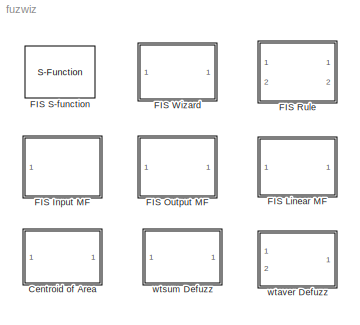
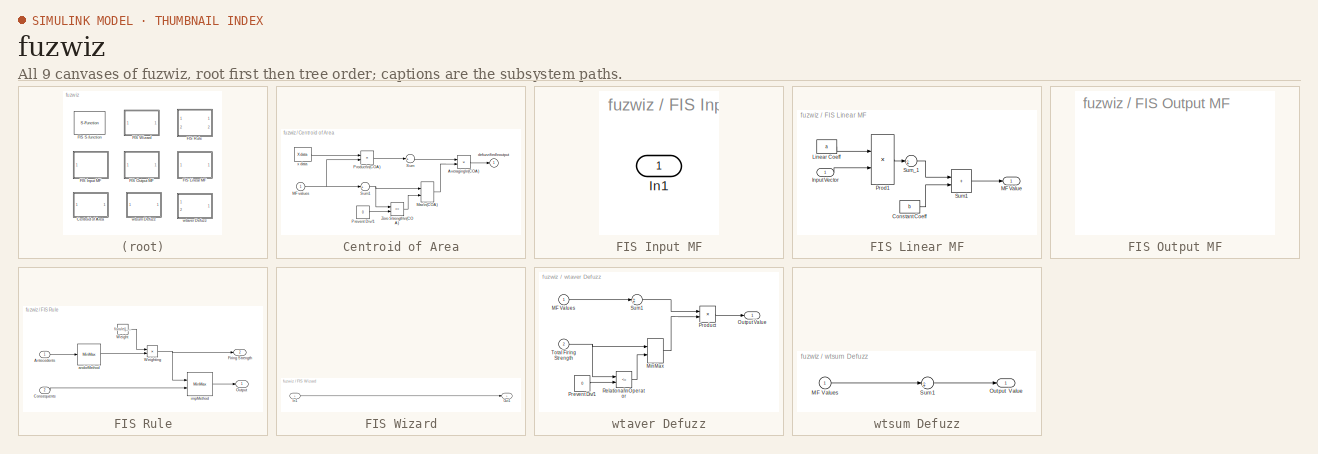
[diagram: thumbnail index - all 9 canvases of the model, root first then tree order]
MODEL fuzwiz
KIND library
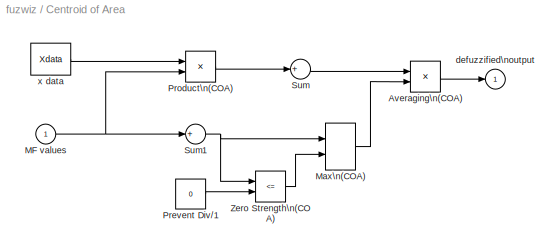
BLOCK [SubSystem] Centroid of Area
  MaskDisplay = disp('COA')
  MaskEnableString = on
  MaskIconFrame = on
  MaskIconOpaque = on
  MaskIconRotate = none
  MaskIconUnits = autoscale
  MaskInitialization = Xdata = linspace(range(1),range(2),101);
  MaskPromptString = Output Range:
  MaskStyleString = edit
  MaskToolTipString = on
  MaskTunableValueString = on
  MaskType = COA Defuzzification
  MaskVariables = range=@1;
  MaskVisibilityString = on
  Ports = [1, 1]
  RTWFcnNameOpts = Auto
  RTWFileNameOpts = Auto
  RTWSystemCode = Auto
  ShowPortLabels = on
  TreatAsAtomicUnit = off
BLOCK [Product] Centroid of Area/Averaging\n(COA)
  Inputs = */
  Multiplication = Element-wise(.*)
  Ports = [2, 1]
  SaturateOnIntegerOverflow = on
BLOCK [Inport] Centroid of Area/MF values
  Interpolate = on
  Port = 1
BLOCK [MinMax] Centroid of Area/Max\n(COA)
  Function = max
  Inputs = 2
  Ports = [2, 1]
BLOCK [Constant] Centroid of Area/Prevent Div//1
  Value = 0
  VectorParams1D = on
BLOCK [Product] Centroid of Area/Product\n(COA)
  Inputs = 2
  Multiplication = Element-wise(.*)
  Ports = [2, 1]
  SaturateOnIntegerOverflow = on
BLOCK [Sum] Centroid of Area/Sum
  IconShape = round
  Inputs = +
  Ports = [1, 1]
  SaturateOnIntegerOverflow = on
BLOCK [Sum] Centroid of Area/Sum1
  IconShape = round
  Inputs = +
  Ports = [1, 1]
  SaturateOnIntegerOverflow = on
BLOCK [RelationalOperator] Centroid of Area/Zero Strength\n(COA)
  Operator = <=
BLOCK [Outport] Centroid of Area/defuzzified\noutput
  InitialOutput = []
  OutputWhenDisabled = held
  Port = 1
BLOCK [Constant] Centroid of Area/x data
  Value = Xdata
  VectorParams1D = on
BLOCK [SubSystem] FIS Input MF
  MaskCallbackString = |
  MaskDisplay = disp('Input MF')
  MaskEnableString = on,on
  MaskIconFrame = on
  MaskIconOpaque = on
  MaskIconRotate = none
  MaskIconUnits = autoscale
  MaskInitialization = fuzwizmask(gcb,fis,j_in)
  MaskPromptString = FIS structure:|Input:
  MaskSelfModifiable = on
  MaskStyleString = edit,edit
  MaskToolTipString = on,on
  MaskTunableValueString = on,on
  MaskType = Input MF Eval
  MaskValueString = |
  MaskVariables = fis=@1;j_in=@2;
  MaskVisibilityString = on,on
  Ports = [1]
  RTWFcnNameOpts = Auto
  RTWFileNameOpts = Auto
  RTWSystemCode = Auto
  ShowPortLabels = off
  TreatAsAtomicUnit = off
BLOCK [Inport] FIS Input MF/In1
  Interpolate = on
  Port = 1
BLOCK [SubSystem] FIS Linear MF
  MaskCallbackString = |
  MaskDisplay = disp('Linear MF')
  MaskEnableString = on,on
  MaskIconFrame = on
  MaskIconOpaque = on
  MaskIconRotate = none
  MaskIconUnits = autoscale
  MaskPromptString = Linear Coefficients:|Constant Coefficients:
  MaskStyleString = edit,edit
  MaskToolTipString = on,on
  MaskTunableValueString = on,on
  MaskType = Linear Output MF
  MaskValueString = |
  MaskVariables = a=@1;b=@2;
  MaskVisibilityString = on,on
  Ports = [1, 1]
  RTWFcnNameOpts = Auto
  RTWFileNameOpts = Auto
  RTWSystemCode = Auto
  ShowPortLabels = off
  TreatAsAtomicUnit = off
BLOCK [Constant] FIS Linear MF/Constant Coeff
  Value = b
  VectorParams1D = on
BLOCK [Inport] FIS Linear MF/Input Vector
  Interpolate = on
  Port = 1
BLOCK [Constant] FIS Linear MF/Linear Coeff
  Value = a
  VectorParams1D = on
BLOCK [Outport] FIS Linear MF/MF Value
  InitialOutput = []
  OutputWhenDisabled = held
  Port = 1
BLOCK [Product] FIS Linear MF/Prod1
  Inputs = 2
  Multiplication = Element-wise(.*)
  Ports = [2, 1]
  SaturateOnIntegerOverflow = on
BLOCK [Sum] FIS Linear MF/Sum1
  IconShape = rectangular
  Inputs = 2
  Ports = [2, 1]
  SaturateOnIntegerOverflow = on
BLOCK [Sum] FIS Linear MF/Sum_1
  IconShape = round
  Inputs = 1
  Ports = [1, 1]
  SaturateOnIntegerOverflow = on
BLOCK [SubSystem] FIS Output MF
  MaskCallbackString = |
  MaskDisplay = disp('Output MF')
  MaskEnableString = on,on
  MaskIconFrame = on
  MaskIconOpaque = on
  MaskIconRotate = none
  MaskIconUnits = autoscale
  MaskInitialization = fuzwizmask(gcb,fis,j_out)
  MaskPromptString = FIS structure:|Output:
  MaskSelfModifiable = on
  MaskStyleString = edit,edit
  MaskToolTipString = on,on
  MaskTunableValueString = on,on
  MaskType = Output MF Eval
  MaskValueString = |
  MaskVariables = fis=@1;j_out=@2;
  MaskVisibilityString = on,on
  Ports = []
  RTWFcnNameOpts = Auto
  RTWFileNameOpts = Auto
  RTWSystemCode = Auto
  ShowPortLabels = off
  TreatAsAtomicUnit = off
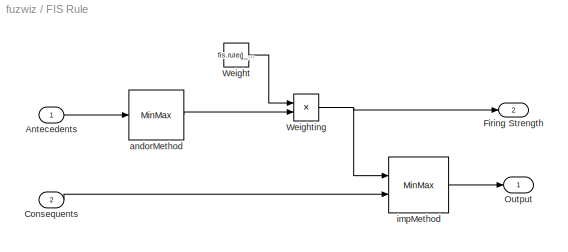
BLOCK [SubSystem] FIS Rule
  MaskCallbackString = |
  MaskDisplay = disp('Rule')
  MaskEnableString = on,on
  MaskIconFrame = on
  MaskIconOpaque = on
  MaskIconRotate = none
  MaskIconUnits = autoscale
  MaskInitialization = fuzwizmask(gcb,fis,j_rule)
  MaskPromptString = FIS structure:|Rule:
  MaskSelfModifiable = on
  MaskStyleString = edit,edit
  MaskToolTipString = on,on
  MaskTunableValueString = on,on
  MaskType = FIS Rule
  MaskValueString = |
  MaskVariables = fis=@1;j_rule=@2;
  MaskVisibilityString = on,on
  Ports = [2, 2]
  RTWFcnNameOpts = Auto
  RTWFileNameOpts = Auto
  RTWSystemCode = Auto
  ShowPortLabels = off
  TreatAsAtomicUnit = off
BLOCK [Inport] FIS Rule/Antecedents
  Interpolate = on
  Port = 1
BLOCK [Inport] FIS Rule/Consequents
  Interpolate = on
  Port = 2
BLOCK [Outport] FIS Rule/Firing Strength
  InitialOutput = []
  OutputWhenDisabled = held
  Port = 2
BLOCK [Outport] FIS Rule/Output
  InitialOutput = []
  OutputWhenDisabled = held
  Port = 1
BLOCK [Constant] FIS Rule/Weight
  Value = fis.rule(j_rule).weight
  VectorParams1D = on
BLOCK [Product] FIS Rule/Weighting
  Inputs = 2
  Multiplication = Element-wise(.*)
  Ports = [2, 1]
  SaturateOnIntegerOverflow = on
BLOCK [MinMax] FIS Rule/andorMethod
  Function = max
  Inputs = 1
  Ports = [1, 1]
BLOCK [MinMax] FIS Rule/impMethod
  Function = min
  Inputs = 2
  Ports = [2, 1]
BLOCK [S-Function] FIS S-function
  FunctionName = sffis
  Parameters = fis
  PortCounts = []
  Ports = [1, 1]
  SFunctionModules = sfsup
BLOCK [SubSystem] FIS Wizard
  MaskDisplay = disp('FIS')
  MaskEnableString = on
  MaskIconFrame = on
  MaskIconOpaque = on
  MaskIconRotate = none
  MaskIconUnits = autoscale
  MaskInitialization = fuzwizmask(gcb,fis);
  MaskPromptString = FIS structure:
  MaskSelfModifiable = on
  MaskStyleString = edit
  MaskToolTipString = on
  MaskTunableValueString = on
  MaskType = FIS Wizard
  MaskVariables = fis=@1;
  MaskVisibilityString = on
  Ports = [1, 1]
  RTWFcnNameOpts = Auto
  RTWFileNameOpts = Auto
  RTWSystemCode = Auto
  ShowPortLabels = on
  TreatAsAtomicUnit = off
BLOCK [Inport] FIS Wizard/In1
  Interpolate = on
  Port = 1
BLOCK [Outport] FIS Wizard/Out1
  InitialOutput = []
  OutputWhenDisabled = held
  Port = 1
BLOCK [SubSystem] wtaver Defuzz
  MaskDisplay = disp('WTAVER')
  MaskIconFrame = on
  MaskIconOpaque = on
  MaskIconRotate = none
  MaskIconUnits = autoscale
  MaskType = WTAVER Defuzzification
  Ports = [2, 1]
  RTWFcnNameOpts = Auto
  RTWFileNameOpts = Auto
  RTWSystemCode = Auto
  ShowPortLabels = on
  TreatAsAtomicUnit = off
BLOCK [Inport] wtaver Defuzz/MF Values
  Interpolate = on
  Port = 1
BLOCK [MinMax] wtaver Defuzz/MinMax
  Function = max
  Inputs = 2
  Ports = [2, 1]
BLOCK [Outport] wtaver Defuzz/Output Value
  InitialOutput = []
  OutputWhenDisabled = held
  Port = 1
BLOCK [Constant] wtaver Defuzz/Prevent Div//1
  Value = 0
  VectorParams1D = on
BLOCK [Product] wtaver Defuzz/Product
  Inputs = */
  Multiplication = Element-wise(.*)
  Ports = [2, 1]
  SaturateOnIntegerOverflow = on
BLOCK [RelationalOperator] wtaver Defuzz/Relational\nOperator
  Operator = <=
BLOCK [Sum] wtaver Defuzz/Sum1
  IconShape = round
  Inputs = 1
  Ports = [1, 1]
  SaturateOnIntegerOverflow = on
BLOCK [Inport] wtaver Defuzz/Total Firing Strength
  Interpolate = on
  Port = 2
BLOCK [SubSystem] wtsum Defuzz
  MaskDisplay = disp('WTSUM')
  MaskIconFrame = on
  MaskIconOpaque = on
  MaskIconRotate = none
  MaskIconUnits = autoscale
  MaskType = WTSUM Defuzzification
  Ports = [1, 1]
  RTWFcnNameOpts = Auto
  RTWFileNameOpts = Auto
  RTWSystemCode = Auto
  ShowPortLabels = on
  TreatAsAtomicUnit = off
BLOCK [Inport] wtsum Defuzz/MF Values
  Interpolate = on
  Port = 1
BLOCK [Outport] wtsum Defuzz/Output Value
  InitialOutput = []
  OutputWhenDisabled = held
  Port = 1
BLOCK [Sum] wtsum Defuzz/Sum1
  IconShape = round
  Inputs = 1
  Ports = [1, 1]
  SaturateOnIntegerOverflow = on
LINE Centroid of Area/Averaging\n(COA):1 -> Centroid of Area/defuzzified\noutput:1
NET Centroid of Area/MF values:1 -> Centroid of Area/Product\n(COA):2, Centroid of Area/Sum1:1
LINE Centroid of Area/Max\n(COA):1 -> Centroid of Area/Averaging\n(COA):2
LINE Centroid of Area/Prevent Div//1:1 -> Centroid of Area/Zero Strength\n(COA):2
LINE Centroid of Area/Product\n(COA):1 -> Centroid of Area/Sum:1
NET Centroid of Area/Sum1:1 -> Centroid of Area/Max\n(COA):1, Centroid of Area/Zero Strength\n(COA):1
LINE Centroid of Area/Sum:1 -> Centroid of Area/Averaging\n(COA):1
LINE Centroid of Area/Zero Strength\n(COA):1 -> Centroid of Area/Max\n(COA):2
LINE Centroid of Area/x data:1 -> Centroid of Area/Product\n(COA):1
LINE FIS Linear MF/Constant Coeff:1 -> FIS Linear MF/Sum1:2
LINE FIS Linear MF/Input Vector:1 -> FIS Linear MF/Prod1:2
LINE FIS Linear MF/Linear Coeff:1 -> FIS Linear MF/Prod1:1
LINE FIS Linear MF/Prod1:1 -> FIS Linear MF/Sum_1:1
LINE FIS Linear MF/Sum1:1 -> FIS Linear MF/MF Value:1
LINE FIS Linear MF/Sum_1:1 -> FIS Linear MF/Sum1:1
LINE FIS Rule/Antecedents:1 -> FIS Rule/andorMethod:1
LINE FIS Rule/Consequents:1 -> FIS Rule/impMethod:2
LINE FIS Rule/Weight:1 -> FIS Rule/Weighting:1
NET FIS Rule/Weighting:1 -> FIS Rule/Firing Strength:1, FIS Rule/impMethod:1
LINE FIS Rule/andorMethod:1 -> FIS Rule/Weighting:2
LINE FIS Rule/impMethod:1 -> FIS Rule/Output:1
LINE FIS Wizard/In1:1 -> FIS Wizard/Out1:1
LINE wtaver Defuzz/MF Values:1 -> wtaver Defuzz/Sum1:1
LINE wtaver Defuzz/MinMax:1 -> wtaver Defuzz/Product:2
LINE wtaver Defuzz/Prevent Div//1:1 -> wtaver Defuzz/Relational\nOperator:2
LINE wtaver Defuzz/Product:1 -> wtaver Defuzz/Output Value:1
LINE wtaver Defuzz/Relational\nOperator:1 -> wtaver Defuzz/MinMax:2
LINE wtaver Defuzz/Sum1:1 -> wtaver Defuzz/Product:1
NET wtaver Defuzz/Total Firing Strength:1 -> wtaver Defuzz/MinMax:1, wtaver Defuzz/Relational\nOperator:1
LINE wtsum Defuzz/MF Values:1 -> wtsum Defuzz/Sum1:1
LINE wtsum Defuzz/Sum1:1 -> wtsum Defuzz/Output Value:1
note: NET lines group one-source signal fan-out (src -> all destinations, sorted); 1:1 wires keep LINE
